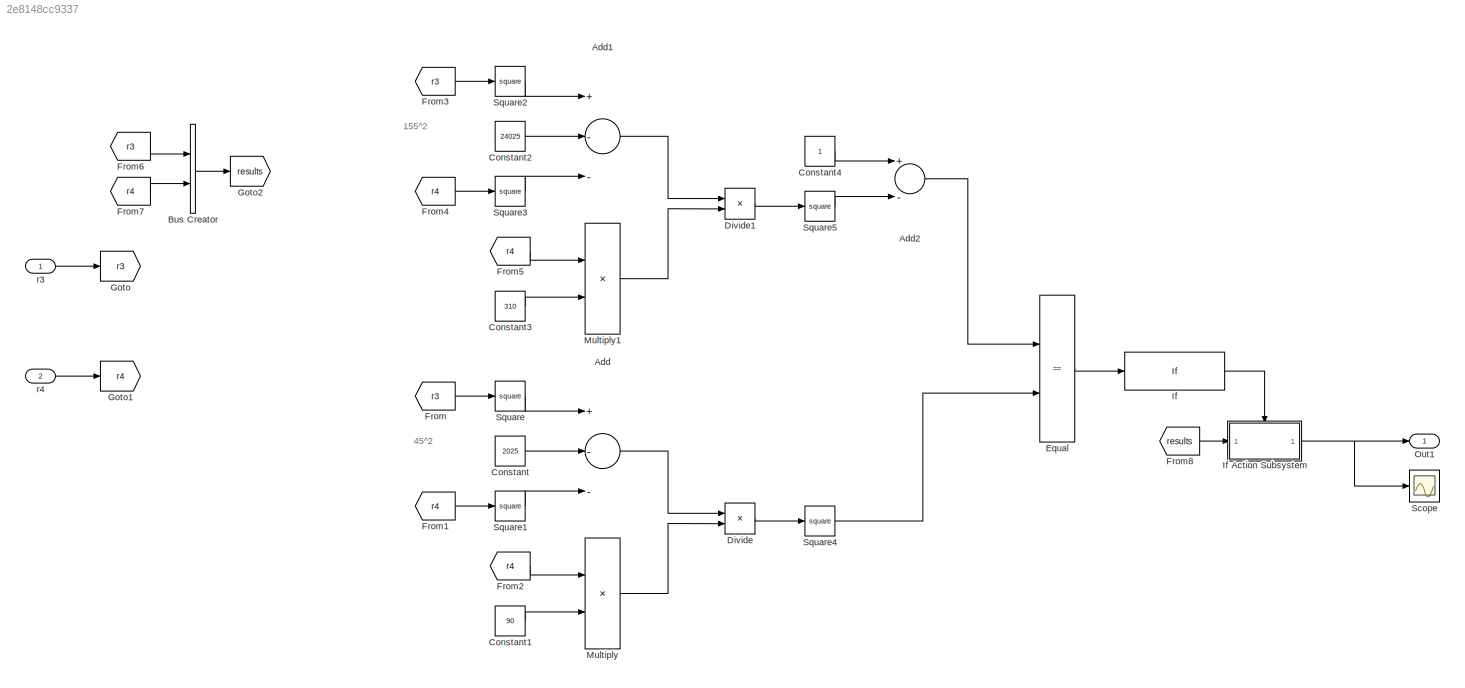
MODEL slx_2e8148cc9337
KIND model
CONFIG AbsTol = auto
CONFIG EnableMultiTasking = off
CONFIG FixedStep = auto
CONFIG MaxStep = auto
CONFIG MinStep = auto
CONFIG RelTol = 1e-3
CONFIG SampleTimeConstraint = Unconstrained
CONFIG Solver = VariableStepAuto
CONFIG SolverName = VariableStepAuto
CONFIG StartTime = 0.0
CONFIG StopTime = 10.0
BLOCK [Sum] Add
  InputSameDT = off
  Inputs = +--
  OutDataTypeStr = Inherit: Inherit via internal rule
  Ports = [3, 1]
  SaturateOnIntegerOverflow = off
BLOCK [Sum] Add1
  InputSameDT = off
  Inputs = +--
  OutDataTypeStr = Inherit: Inherit via internal rule
  Ports = [3, 1]
  SaturateOnIntegerOverflow = off
BLOCK [Sum] Add2
  InputSameDT = off
  Inputs = +-
  OutDataTypeStr = Inherit: Inherit via internal rule
  Ports = [2, 1]
  SaturateOnIntegerOverflow = off
BLOCK [BusCreator] Bus Creator
  DisplayOption = bar
  InheritFromInputs = on
  Inputs = 2
  Ports = [2, 1]
BLOCK [Constant] Constant
  Value = 2025
BLOCK [Constant] Constant1
  Value = 90
BLOCK [Constant] Constant2
  Value = 24025
BLOCK [Constant] Constant3
  Value = 310
BLOCK [Constant] Constant4
BLOCK [Product] Divide
  InputSameDT = off
  Inputs = */
  OutDataTypeStr = Inherit: Inherit via internal rule
  Ports = [2, 1]
  RndMeth = Floor
  SaturateOnIntegerOverflow = off
BLOCK [Product] Divide1
  InputSameDT = off
  Inputs = */
  OutDataTypeStr = Inherit: Inherit via internal rule
  Ports = [2, 1]
  RndMeth = Floor
  SaturateOnIntegerOverflow = off
BLOCK [RelationalOperator] Equal
  InputSameDT = off
  Operator = ==
  OutDataTypeStr = boolean
  Ports = [2, 1]
  RndMeth = Simplest
BLOCK [From] From
  GotoTag = r3
BLOCK [From] From1
  GotoTag = r4
BLOCK [From] From2
  GotoTag = r4
BLOCK [From] From3
  GotoTag = r3
BLOCK [From] From4
  GotoTag = r4
BLOCK [From] From5
  GotoTag = r4
BLOCK [From] From6
  GotoTag = r3
BLOCK [From] From7
  GotoTag = r4
BLOCK [From] From8
  GotoTag = results
BLOCK [Goto] Goto
  GotoTag = r3
BLOCK [Goto] Goto1
  GotoTag = r4
BLOCK [Goto] Goto2
  GotoTag = results
BLOCK [If] If
  IfExpression = u1 == 1
  Ports = [1, 1]
  ShowElse = off
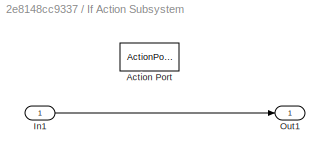
BLOCK [SubSystem] If Action Subsystem
  Ports = [1, 1, 0, 0, 0, 0, 0, 1]
  RequestExecContextInheritance = off
  TreatAsAtomicUnit = on
BLOCK [ActionPort] If Action Subsystem/Action Port
  ActionType = then
BLOCK [Inport] If Action Subsystem/In1
  IconDisplay = Port number
BLOCK [Outport] If Action Subsystem/Out1
  IconDisplay = Port number
BLOCK [Product] Multiply
  InputSameDT = off
  OutDataTypeStr = Inherit: Inherit via internal rule
  Ports = [2, 1]
  RndMeth = Floor
  SaturateOnIntegerOverflow = off
BLOCK [Product] Multiply1
  InputSameDT = off
  OutDataTypeStr = Inherit: Inherit via internal rule
  Ports = [2, 1]
  RndMeth = Floor
  SaturateOnIntegerOverflow = off
BLOCK [Outport] Out1
  IconDisplay = Port number
BLOCK [Scope] Scope
  Floating = off
  NumInputPorts = 1
  Ports = [1]
  ScopeSpecificationString = Simulink.scopes.TimeScopeBlockCfg('CurrentConfiguration', extmgr.ConfigurationSet(extmgr.Configuration('Core','General UI',true),extmgr.Configuration('Core','Source UI',true),extmgr.Configuration('Sources','WiredSimulink',true),extmgr.Configuration('Visuals','Time Domain',true,'SerializedDisplays',{struct('MinYLimReal','-1.00000','MaxYLimReal','1.00000','YLabelReal','','MinYLimMag','0.00000','MaxY...<+1365ch>
BLOCK [Math] Square
  Operator = square
  Ports = [1, 1]
BLOCK [Math] Square1
  Operator = square
  Ports = [1, 1]
BLOCK [Math] Square2
  Operator = square
  Ports = [1, 1]
BLOCK [Math] Square3
  Operator = square
  Ports = [1, 1]
BLOCK [Math] Square4
  Operator = square
  Ports = [1, 1]
BLOCK [Math] Square5
  Operator = square
  Ports = [1, 1]
BLOCK [Inport] r3
  IconDisplay = Port number
BLOCK [Inport] r4
  IconDisplay = Port number
  Port = 2
ANNOTATION (root): 155^2
ANNOTATION (root): 45^2
LINE Add1:1 -> Divide1:1
LINE Add2:1 -> Equal:1
LINE Add:1 -> Divide:1
LINE Bus Creator:1 -> Goto2:1
LINE Constant1:1 -> Multiply:2
LINE Constant2:1 -> Add1:2
LINE Constant3:1 -> Multiply1:2
LINE Constant4:1 -> Add2:1
LINE Constant:1 -> Add:2
LINE Divide1:1 -> Square5:1
LINE Divide:1 -> Square4:1
LINE Equal:1 -> If:1
LINE From1:1 -> Square1:1
LINE From2:1 -> Multiply:1
LINE From3:1 -> Square2:1
LINE From4:1 -> Square3:1
LINE From5:1 -> Multiply1:1
LINE From6:1 -> Bus Creator:1
LINE From7:1 -> Bus Creator:2
LINE From8:1 -> If Action Subsystem:1
LINE From:1 -> Square:1
LINE If Action Subsystem/In1:1 -> If Action Subsystem/Out1:1
NET If Action Subsystem:1 -> Out1:1, Scope:1
LINE If:1 -> If Action Subsystem:ifaction
LINE Multiply1:1 -> Divide1:2
LINE Multiply:1 -> Divide:2
LINE Square1:1 -> Add:3
LINE Square2:1 -> Add1:1
LINE Square3:1 -> Add1:3
LINE Square4:1 -> Equal:2
LINE Square5:1 -> Add2:2
LINE Square:1 -> Add:1
LINE r3:1 -> Goto:1
LINE r4:1 -> Goto1:1
note: NET lines group one-source signal fan-out (src -> all destinations, sorted); 1:1 wires keep LINE
